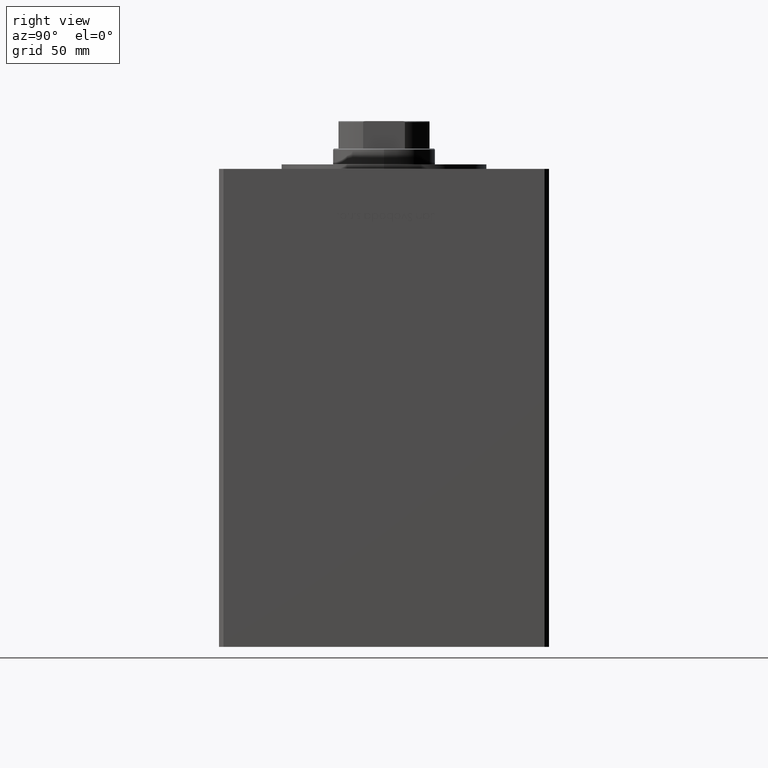
[diagram: clean part render]
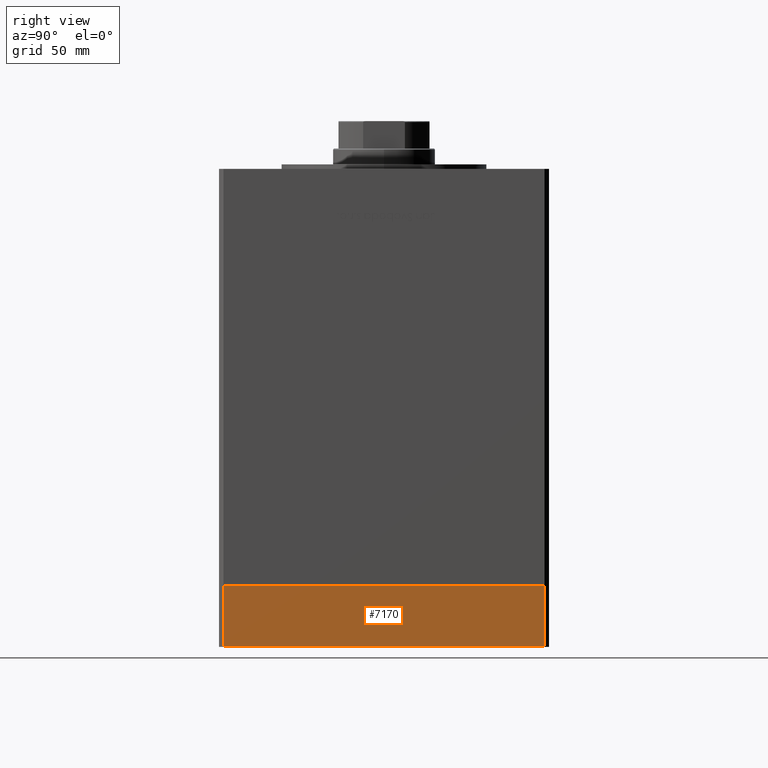
[diagram: same view with one face highlighted and labeled with its STEP entity id]
A machine part, right view. The second image highlights one B-rep face of the part: STEP entity #7170.
In plain terms, the highlighted planar face has unit normal (1, 0, 0).
Its self-contained STEP definition (entity closure, byte-faithful):
#5064 = CARTESIAN_POINT ( 'NONE',  ( -85.00000000000001421, -70.50000000000000000, -27.00000000000000000 ) ) ;
#5466 = CARTESIAN_POINT ( 'NONE',  ( -85.00000000000001421, -70.50000000000000000, 0.000000000000000000 ) ) ;
#7170 = ADVANCED_FACE ( 'NONE', ( #41873 ), #46338, .T. ) ;
#7985 = AXIS2_PLACEMENT_3D ( 'NONE', #33960, #26324, #33699 ) ;
#10232 = LINE ( 'NONE', #26316, #41109 ) ;
#15532 = EDGE_LOOP ( 'NONE', ( #21770, #48411, #21319, #18077 ) ) ;
#17100 = CARTESIAN_POINT ( 'NONE',  ( -85.00000000000001421, 70.49999999999997158, 0.000000000000000000 ) ) ;
#17357 = DIRECTION ( 'NONE',  ( 0.000000000000000000, -1.000000000000000000, 0.000000000000000000 ) ) ;
#18077 = ORIENTED_EDGE ( 'NONE', *, *, #50719, .T. ) ;
#20466 = VERTEX_POINT ( 'NONE', #5466 ) ;
#20776 = CARTESIAN_POINT ( 'NONE',  ( -85.00000000000001421, 70.49999999999997158, -27.00000000000000000 ) ) ;
#21319 = ORIENTED_EDGE ( 'NONE', *, *, #23160, .T. ) ;
#21770 = ORIENTED_EDGE ( 'NONE', *, *, #51210, .F. ) ;
#23030 = VERTEX_POINT ( 'NONE', #17100 ) ;
#23160 = EDGE_CURVE ( 'NONE', #25745, #40612, #10232, .T. ) ;
#23544 = CARTESIAN_POINT ( 'NONE',  ( -85.00000000000001421, 70.49999999999997158, 0.000000000000000000 ) ) ;
#24465 = DIRECTION ( 'NONE',  ( 0.000000000000000000, 0.000000000000000000, 1.000000000000000000 ) ) ;
#25345 = DIRECTION ( 'NONE',  ( 0.000000000000000000, 0.000000000000000000, 1.000000000000000000 ) ) ;
#25745 = VERTEX_POINT ( 'NONE', #46584 ) ;
#26316 = CARTESIAN_POINT ( 'NONE',  ( -85.00000000000001421, 70.49999999999997158, -27.00000000000000000 ) ) ;
#26324 = DIRECTION ( 'NONE',  ( -1.000000000000000000, 0.000000000000000000, 0.000000000000000000 ) ) ;
#29088 = EDGE_CURVE ( 'NONE', #25745, #23030, #32112, .T. ) ;
#32032 = CARTESIAN_POINT ( 'NONE',  ( -85.00000000000001421, -70.50000000000000000, -27.00000000000000000 ) ) ;
#32112 = LINE ( 'NONE', #20776, #40436 ) ;
#32711 = LINE ( 'NONE', #5064, #42222 ) ;
#33699 = DIRECTION ( 'NONE',  ( 0.000000000000000000, 0.000000000000000000, 1.000000000000000000 ) ) ;
#33960 = CARTESIAN_POINT ( 'NONE',  ( -85.00000000000001421, 70.49999999999997158, -27.00000000000000000 ) ) ;
#39363 = DIRECTION ( 'NONE',  ( 0.000000000000000000, -1.000000000000000000, 0.000000000000000000 ) ) ;
#40436 = VECTOR ( 'NONE', #24465, 1000.000000000000000 ) ;
#40612 = VERTEX_POINT ( 'NONE', #32032 ) ;
#41109 = VECTOR ( 'NONE', #17357, 1000.000000000000000 ) ;
#41873 = FACE_OUTER_BOUND ( 'NONE', #15532, .T. ) ;
#42222 = VECTOR ( 'NONE', #25345, 1000.000000000000000 ) ;
#43570 = LINE ( 'NONE', #23544, #47306 ) ;
#46338 = PLANE ( 'NONE',  #7985 ) ;
#46584 = CARTESIAN_POINT ( 'NONE',  ( -85.00000000000001421, 70.49999999999997158, -27.00000000000000000 ) ) ;
#47306 = VECTOR ( 'NONE', #39363, 1000.000000000000000 ) ;
#48411 = ORIENTED_EDGE ( 'NONE', *, *, #29088, .F. ) ;
#50719 = EDGE_CURVE ( 'NONE', #40612, #20466, #32711, .T. ) ;
#51210 = EDGE_CURVE ( 'NONE', #23030, #20466, #43570, .T. ) ;